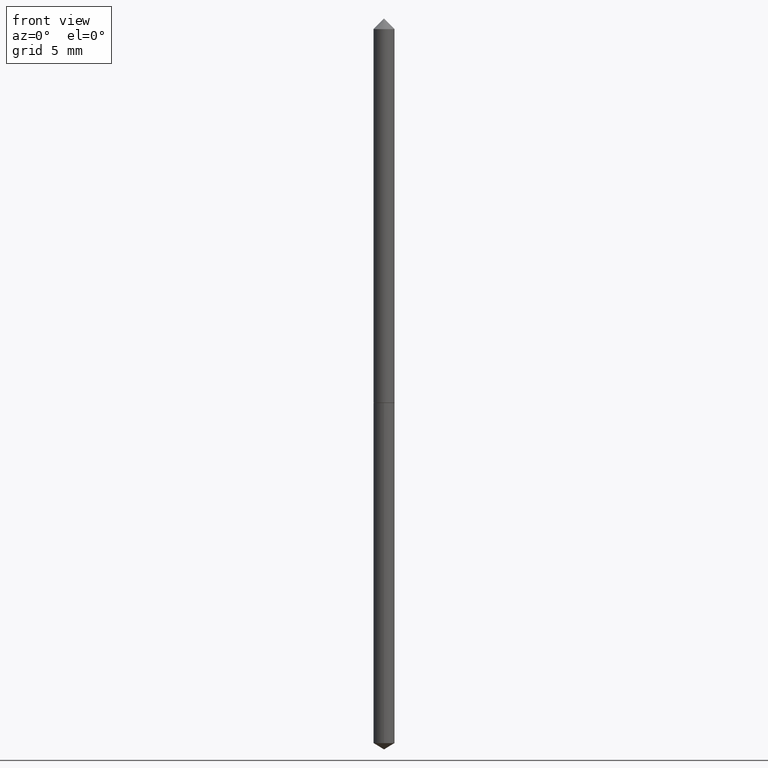
[diagram: clean part render]
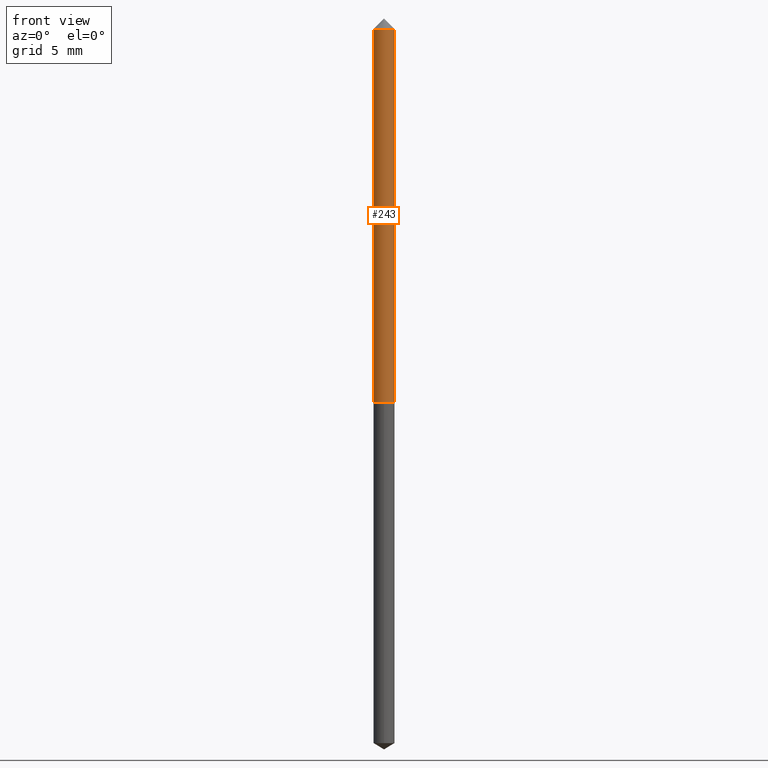
[diagram: same view with one face highlighted and labeled with its STEP entity id]
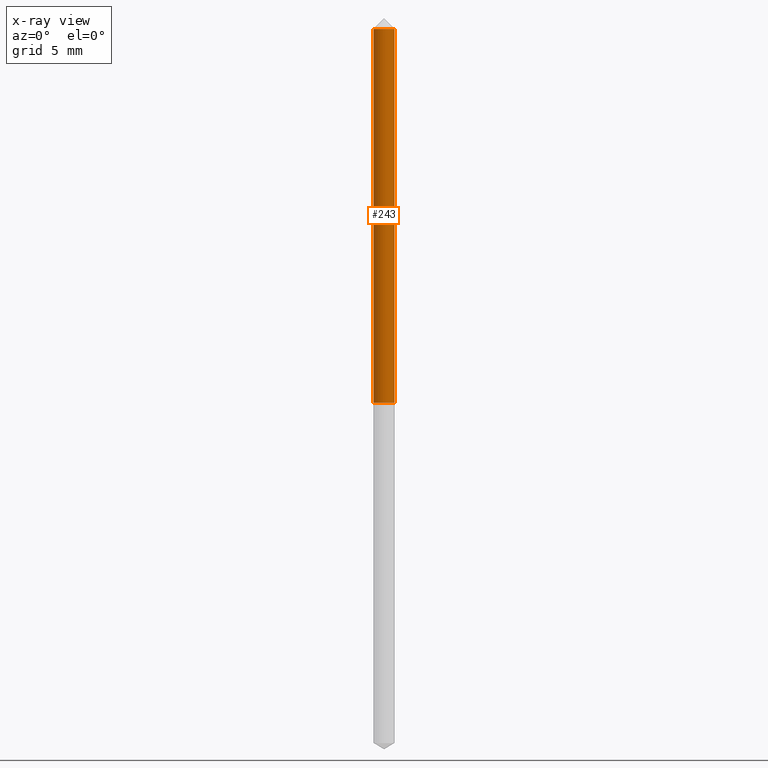
[diagram: x-ray of the same camera — body ghosted, the highlighted face saturated]
A machine part, front view. The second image highlights one B-rep face of the part: STEP entity #243.
The next image is the same camera in x-ray: the body ghosted, the highlighted face saturated — about 0% of this face is hidden behind the body in this view.
In plain terms, the highlighted cylindrical surface (edge-blend (fillet) strip) has radius 0.5461 mm, axis along (-0, 0, 1).
Its self-contained STEP definition (entity closure, byte-faithful):
#5 = DIRECTION ( 'NONE',  ( 1.000000000000000000, -6.982962677686265922E-15, 4.876176775795935232E-29 ) ) ;
#13 = CARTESIAN_POINT ( 'NONE',  ( 0.02150000000000005726, -1.501336975702551248E-16, 1.048378006796128830E-30 ) ) ;
#21 = DIRECTION ( 'NONE',  ( -2.445468806185136877E-29, 3.491481338843145188E-15, 1.000000000000000000 ) ) ;
#32 = EDGE_CURVE ( 'NONE', #334, #247, #340, .T. ) ;
#45 = DIRECTION ( 'NONE',  ( -2.445468806185136877E-29, 3.491481338843145188E-15, 1.000000000000000000 ) ) ;
#54 = ORIENTED_EDGE ( 'NONE', *, *, #143, .F. ) ;
#60 = CARTESIAN_POINT ( 'NONE',  ( 7.642090019328602662E-31, -1.091087918388490267E-16, -0.03125000000000020817 ) ) ;
#67 = CYLINDRICAL_SURFACE ( 'NONE', #313, 0.02150000000000005726 ) ;
#70 = VERTEX_POINT ( 'NONE', #151 ) ;
#93 = DIRECTION ( 'NONE',  ( -2.445468806185136597E-29, 3.491481338843145583E-15, 1.000000000000000000 ) ) ;
#115 = VERTEX_POINT ( 'NONE', #346 ) ;
#122 = CARTESIAN_POINT ( 'NONE',  ( -0.02150000000000000522, -1.285287188247597701E-15, -0.03125000000000020817 ) ) ;
#128 = CIRCLE ( 'NONE', #198, 0.02150000000000010236 ) ;
#143 = EDGE_CURVE ( 'NONE', #247, #115, #269, .T. ) ;
#151 = CARTESIAN_POINT ( 'NONE',  ( 0.02150000000000010236, -2.917132658603448820E-15, -0.7925000000000000933 ) ) ;
#163 = ORIENTED_EDGE ( 'NONE', *, *, #255, .T. ) ;
#185 = CARTESIAN_POINT ( 'NONE',  ( 0.000000000000000000, 0.000000000000000000, 0.000000000000000000 ) ) ;
#191 = ORIENTED_EDGE ( 'NONE', *, *, #341, .T. ) ;
#195 = CARTESIAN_POINT ( 'NONE',  ( -0.02150000000000010236, -2.614232272844770738E-15, -0.7925000000000000933 ) ) ;
#198 = AXIS2_PLACEMENT_3D ( 'NONE', #343, #93, #344 ) ;
#201 = CARTESIAN_POINT ( 'NONE',  ( -0.02150000000000005726, 1.527666881884219468E-16, -1.057571044404807502E-30 ) ) ;
#235 = FACE_OUTER_BOUND ( 'NONE', #285, .T. ) ;
#239 = VECTOR ( 'NONE', #21, 39.37007874015748143 ) ;
#242 = DIRECTION ( 'NONE',  ( -2.445468806185136597E-29, 3.491481338843145583E-15, 1.000000000000000000 ) ) ;
#243 = ADVANCED_FACE ( 'NONE', ( #235 ), #67, .T. ) ;
#247 = VERTEX_POINT ( 'NONE', #122 ) ;
#250 = ORIENTED_EDGE ( 'NONE', *, *, #32, .F. ) ;
#255 = EDGE_CURVE ( 'NONE', #334, #70, #128, .T. ) ;
#268 = DIRECTION ( 'NONE',  ( 1.000000000000000000, -6.982962677686265922E-15, 0.000000000000000000 ) ) ;
#269 = CIRCLE ( 'NONE', #325, 0.02150000000000000522 ) ;
#285 = EDGE_LOOP ( 'NONE', ( #250, #163, #191, #54 ) ) ;
#296 = DIRECTION ( 'NONE',  ( -2.445468806185136597E-29, 3.491481338843145583E-15, 1.000000000000000000 ) ) ;
#313 = AXIS2_PLACEMENT_3D ( 'NONE', #185, #296, #5 ) ;
#324 = LINE ( 'NONE', #13, #335 ) ;
#325 = AXIS2_PLACEMENT_3D ( 'NONE', #60, #242, #268 ) ;
#334 = VERTEX_POINT ( 'NONE', #195 ) ;
#335 = VECTOR ( 'NONE', #45, 39.37007874015748143 ) ;
#340 = LINE ( 'NONE', #201, #239 ) ;
#341 = EDGE_CURVE ( 'NONE', #70, #115, #324, .T. ) ;
#343 = CARTESIAN_POINT ( 'NONE',  ( 1.938034028901720955E-29, -2.766998961033193203E-15, -0.7925000000000000933 ) ) ;
#344 = DIRECTION ( 'NONE',  ( 1.000000000000000000, -6.982962677686276966E-15, 0.000000000000000000 ) ) ;
#346 = CARTESIAN_POINT ( 'NONE',  ( 0.02150000000000000522, -2.592424894091037817E-16, -0.03125000000000020817 ) ) ;